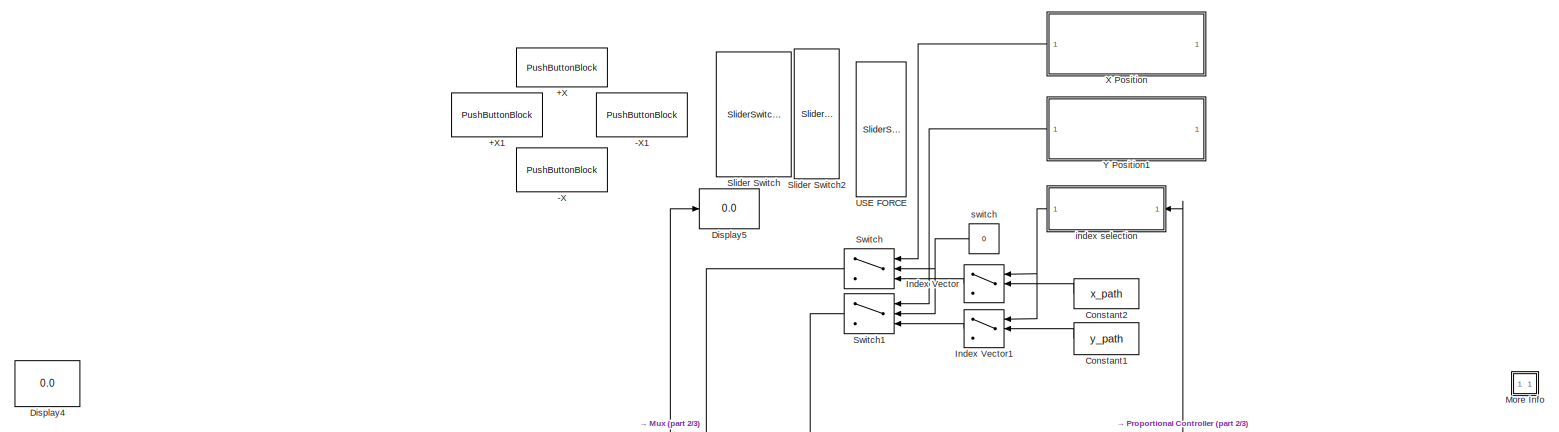
[diagram: root canvas - part 1/3, full width, top band]
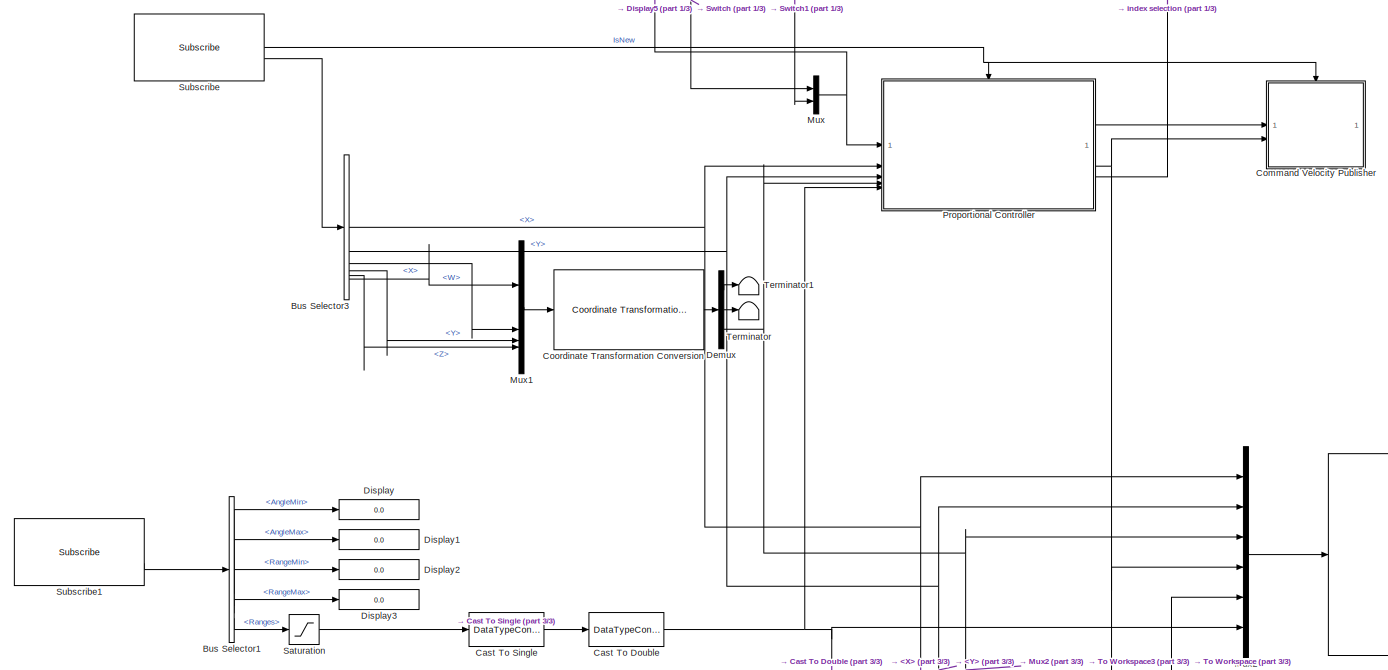
[diagram: root canvas - part 2/3, full width, middle band]
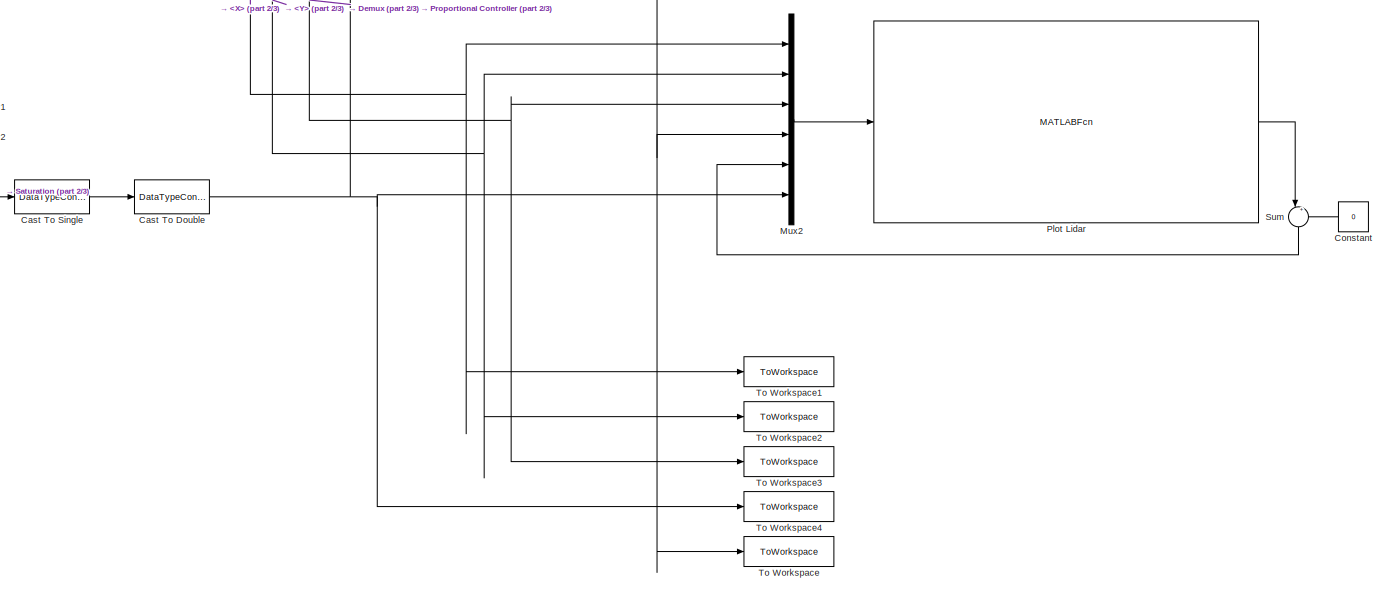
[diagram: root canvas - part 3/3, full width, bottom band]
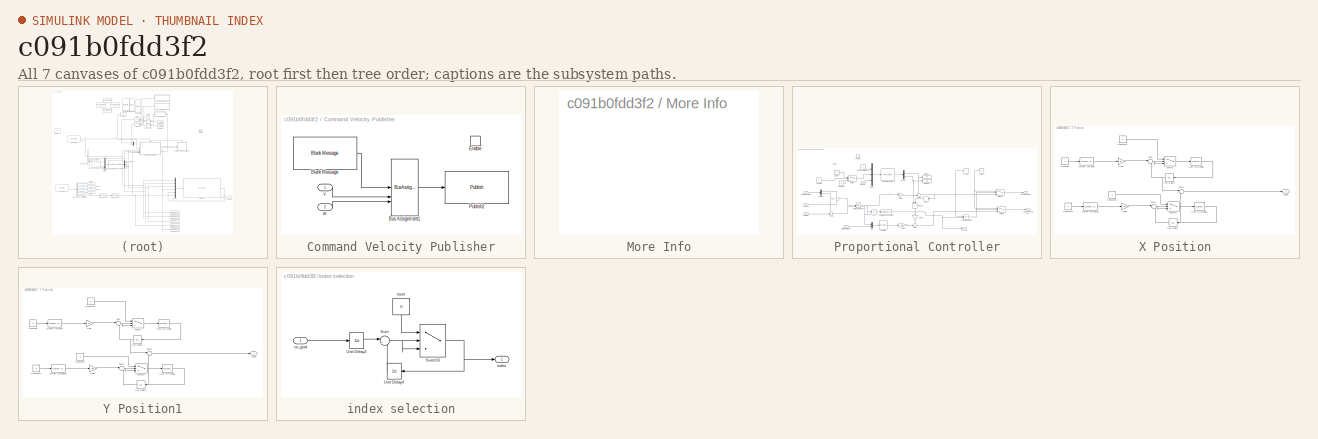
[diagram: thumbnail index - all 7 canvases of the model, root first then tree order]
MODEL slx_c091b0fdd3f2
KIND model
CONFIG AbsTol = auto
CONFIG EnableMultiTasking = on
CONFIG FixedStep = 0.02
CONFIG MaxStep = auto
CONFIG MinStep = auto
CONFIG RelTol = 1e-3
CONFIG SampleTimeConstraint = Unconstrained
CONFIG SolverName = FixedStepDiscrete
CONFIG StartTime = 0.0
CONFIG StopTime = Inf
WORKSPACE source: mxarray member
WORKSPACE SL_ROS_VariableLengthArrays_MaxSizes: object (value not decoded)
BLOCK [PushButtonBlock] +X
  ButtonText = +x
  CustomIcon = data:image/png;base64,iVBORw0KGgoAAAANSUhEUgAAAdEAAAJTCAYAAABXUyzVAAAAAXNSR0IArs4c6QAAAARnQU1BAACxjwv8YQUAAAAJcEhZcwAAEnQAABJ0Ad5mH3gAAP+lSURBVHhehP13ux21sr4L81ne6z3nt1cADE5zeuacs3POERMM2IAx2eScMyYvcgYHsMERR3AgrL3Pd6nz3NJ45pAH3uv8UZekUqmk7jGn7i51t/qyY8f3x9Gff5iUw0f3xc8nDgR6hPzxkz9O5ku965Ay7/Kx4wfi5OmDcezUT3Hs9E9x9JT8KP35zME4fEL9qnz0ZG6HnX2ckL39nJAeuyOyo63bH//lUM5LjlOW3clfDiuVjex/lo+TssHvSezk+9SZQ5...<+721802ch>
  OffValue = 0.000000
BLOCK [PushButtonBlock] +X1
  ButtonText = +y
  OffValue = 0.000000
BLOCK [PushButtonBlock] -X
  ButtonText = -x
  OffValue = 0.000000
BLOCK [PushButtonBlock] -X1
  ButtonText = -y
  OffValue = 0.000000
BLOCK [BusSelector] Bus Selector1
  OutputSignals = AngleMin,AngleMax,RangeMin,RangeMax,Ranges
BLOCK [BusSelector] Bus Selector3
  OutputSignals = Pose.Pose.Position.X,Pose.Pose.Position.Y,Pose.Pose.Orientation.X,Pose.Pose.Orientation.Y,Pose.Pose.Orientation.Z,Pose.Pose.Orientation.W
BLOCK [DataTypeConversion] Cast To Double
  OutDataTypeStr = double
  RndMeth = Floor
  SaturateOnIntegerOverflow = off
BLOCK [DataTypeConversion] Cast To Single
  OutDataTypeStr = single
  RndMeth = Floor
  SaturateOnIntegerOverflow = off
BLOCK [SubSystem] Command Velocity Publisher
BLOCK [Reference] Command Velocity Publisher/Blank Message  REF=robotlib/Blank Message
  SourceBlock = robotlib/Blank Message
  SourceType = ROS Blank Message
BLOCK [BusAssignment] Command Velocity Publisher/Bus Assignment1
  AssignedSignals = Linear.X,Angular.Z
  DialogController = Simulink.DDGSource_BusAssignment
BLOCK [EnablePort] Command Velocity Publisher/Enable
BLOCK [Reference] Command Velocity Publisher/Publish2  REF=robotlib/Publish
  AttributesFormatString = %<messageType>
  SourceBlock = robotlib/Publish
  SourceType = ROS Publish
BLOCK [Inport] Command Velocity Publisher/v
BLOCK [Inport] Command Velocity Publisher/w
  Port = 2
BLOCK [Constant] Constant
  NameLocation = top
  Value = 0
BLOCK [Constant] Constant1
  NameLocation = top
  Value = y_path
BLOCK [Constant] Constant2
  NameLocation = top
  Value = x_path
BLOCK [Reference] Coordinate Transformation Conversion  REF=robotcorelib/Coordinate Transformation Conversion
  LibrarySourceBlock = roslib/Utilities/Coordinate Transformation Conversion
  SourceBlock = robotcorelib/Coordinate Transformation Conversion
  SourceType = robotics.slcore.internal.block.CoordinateTransformationConversion
BLOCK [Demux] Demux
  Outputs = 3
BLOCK [Display] Display
  Decimation = 1
BLOCK [Display] Display1
  Decimation = 1
BLOCK [Display] Display2
  Decimation = 1
BLOCK [Display] Display3
  Decimation = 1
BLOCK [Display] Display4
  Decimation = 1
  NameLocation = top
BLOCK [Display] Display5
  Decimation = 1
BLOCK [MultiPortSwitch] Index Vector
  DataPortOrder = Zero-based contiguous
  InputSameDT = off
  Inputs = 1
  NameLocation = top
  SaturateOnIntegerOverflow = off
  zeroidx = on
BLOCK [MultiPortSwitch] Index Vector1
  DataPortOrder = Zero-based contiguous
  InputSameDT = off
  Inputs = 1
  NameLocation = top
  SaturateOnIntegerOverflow = off
  zeroidx = on
BLOCK [SubSystem] More Info
  OpenFcn = showdemo(bdroot(gcb))
BLOCK [Mux] Mux
  DisplayOption = bar
  Inputs = 2
BLOCK [Mux] Mux1
  DisplayOption = bar
BLOCK [Mux] Mux2
  DisplayOption = bar
  Inputs = 6
BLOCK [MATLABFcn] Plot Lidar
  MATLABFcn = occupancy_map(u(1), u(2), u(3), u(4), u(5), u(6:end))
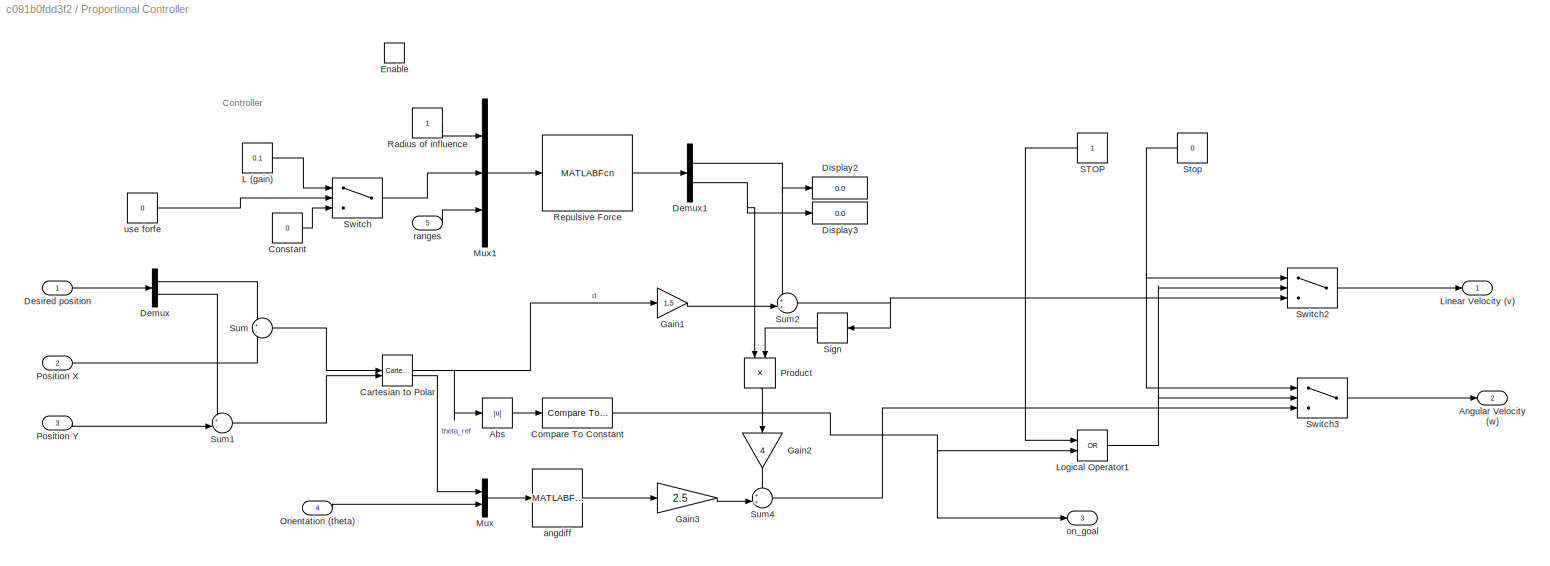
BLOCK [SubSystem] Proportional Controller
BLOCK [Abs] Proportional Controller/Abs
  SaturateOnIntegerOverflow = off
BLOCK [Outport] Proportional Controller/Angular Velocity (w)
  Port = 2
  VectorParamsAs1DForOutWhenUnconnected = off
BLOCK [Reference] Proportional Controller/Cartesian to Polar  REF=simulink_extras/Transformations/Cartesian to
Polar
  SourceBlock = simulink_extras/Transformations/Cartesian to\nPolar
  SourceType = Cart2Polar
BLOCK [Reference] Proportional Controller/Compare To Constant  REF=simulink/Logic and Bit
Operations/Compare
To Constant
  SourceBlock = simulink/Logic and Bit\nOperations/Compare\nTo Constant
  SourceType = Compare To Constant
BLOCK [Constant] Proportional Controller/Constant
  Value = 0
BLOCK [Demux] Proportional Controller/Demux
  Outputs = 2
BLOCK [Demux] Proportional Controller/Demux1
  Outputs = 2
BLOCK [Inport] Proportional Controller/Desired position
BLOCK [Display] Proportional Controller/Display2
  Decimation = 1
BLOCK [Display] Proportional Controller/Display3
  Decimation = 1
BLOCK [EnablePort] Proportional Controller/Enable
BLOCK [Gain] Proportional Controller/Gain1
  Gain = 1.5
BLOCK [Gain] Proportional Controller/Gain2
  Gain = 4
  NameLocation = left
BLOCK [Gain] Proportional Controller/Gain3
  Gain = 2.5
BLOCK [Constant] Proportional Controller/L (gain)
  Value = 0.1
BLOCK [Outport] Proportional Controller/Linear Velocity (v)
  VectorParamsAs1DForOutWhenUnconnected = off
BLOCK [Logic] Proportional Controller/Logical Operator1
  AllPortsSameDT = off
  Operator = OR
  OutDataTypeStr = boolean
BLOCK [Mux] Proportional Controller/Mux
  DisplayOption = bar
  Inputs = 2
BLOCK [Mux] Proportional Controller/Mux1
  DisplayOption = bar
  Inputs = 3
BLOCK [Inport] Proportional Controller/Orientation (theta)
  Port = 4
BLOCK [Inport] Proportional Controller/Position X
  Port = 2
BLOCK [Inport] Proportional Controller/Position Y
  Port = 3
BLOCK [Product] Proportional Controller/Product
  NameLocation = left
BLOCK [Constant] Proportional Controller/Radius of influence
BLOCK [MATLABFcn] Proportional Controller/Repulsive Force
  MATLABFcn = repulsive_force(u(1), u(2), u(3:end))
BLOCK [Constant] Proportional Controller/STOP 
  NameLocation = top
BLOCK [Signum] Proportional Controller/Sign
  NameLocation = top
BLOCK [Constant] Proportional Controller/Stop
  NameLocation = top
  Value = 0
BLOCK [Sum] Proportional Controller/Sum
  Inputs = +-
BLOCK [Sum] Proportional Controller/Sum1
  Inputs = +-|
BLOCK [Sum] Proportional Controller/Sum2
  Inputs = ++|
BLOCK [Sum] Proportional Controller/Sum4
  Inputs = ++|
BLOCK [Switch] Proportional Controller/Switch
  Criteria = u2 ~= 0
  InputSameDT = off
  SaturateOnIntegerOverflow = off
BLOCK [Switch] Proportional Controller/Switch2
  Criteria = u2 ~= 0
  InputSameDT = off
  SaturateOnIntegerOverflow = off
BLOCK [Switch] Proportional Controller/Switch3
  Criteria = u2 ~= 0
  InputSameDT = off
  SaturateOnIntegerOverflow = off
BLOCK [MATLABFcn] Proportional Controller/angdiff
  MATLABFcn = angdiff(u(2), u(1))
BLOCK [Outport] Proportional Controller/on_goal
  Port = 3
BLOCK [Inport] Proportional Controller/ranges
  Port = 5
BLOCK [Constant] Proportional Controller/use forfe
  Value = 0
BLOCK [Saturate] Saturation
  LinearizeAsGain = off
  LowerLimit = 0.12
  UpperLimit = 3.5
BLOCK [SliderSwitchBlock] Slider Switch
  NameLocation = left
BLOCK [SliderSwitchBlock] Slider Switch2
  NameLocation = left
BLOCK [Reference] Subscribe  REF=robotlib/Subscribe
  SourceBlock = robotlib/Subscribe
  SourceType = ROS Subscribe
BLOCK [Reference] Subscribe1  REF=robotlib/Subscribe
  SourceBlock = robotlib/Subscribe
  SourceType = ROS Subscribe
BLOCK [Sum] Sum
  Inputs = |++
  NameLocation = left
BLOCK [Switch] Switch
  Criteria = u2 > Threshold
  InputSameDT = off
  NameLocation = top
  SaturateOnIntegerOverflow = off
BLOCK [Switch] Switch1
  Criteria = u2 > Threshold
  InputSameDT = off
  NameLocation = top
  SaturateOnIntegerOverflow = off
BLOCK [Terminator] Terminator
BLOCK [Terminator] Terminator1
BLOCK [ToWorkspace] To Workspace
  FixptAsFi = on
  MaxDataPoints = inf
  SampleTime = -1
  SaveFormat = Timeseries
  VariableName = ang_vel_exp
BLOCK [ToWorkspace] To Workspace1
  FixptAsFi = on
  MaxDataPoints = inf
  SampleTime = -1
  SaveFormat = Timeseries
  VariableName = x_exp
BLOCK [ToWorkspace] To Workspace2
  FixptAsFi = on
  MaxDataPoints = inf
  SampleTime = -1
  SaveFormat = Timeseries
  VariableName = y_exp
BLOCK [ToWorkspace] To Workspace3
  FixptAsFi = on
  MaxDataPoints = inf
  SampleTime = -1
  SaveFormat = Timeseries
  VariableName = theta_exp
BLOCK [ToWorkspace] To Workspace4
  FixptAsFi = on
  MaxDataPoints = inf
  SampleTime = -1
  SaveFormat = Timeseries
  VariableName = ranges_exp
BLOCK [SliderSwitchBlock] USE FORCE
  LabelPosition = Bottom
  NameLocation = left
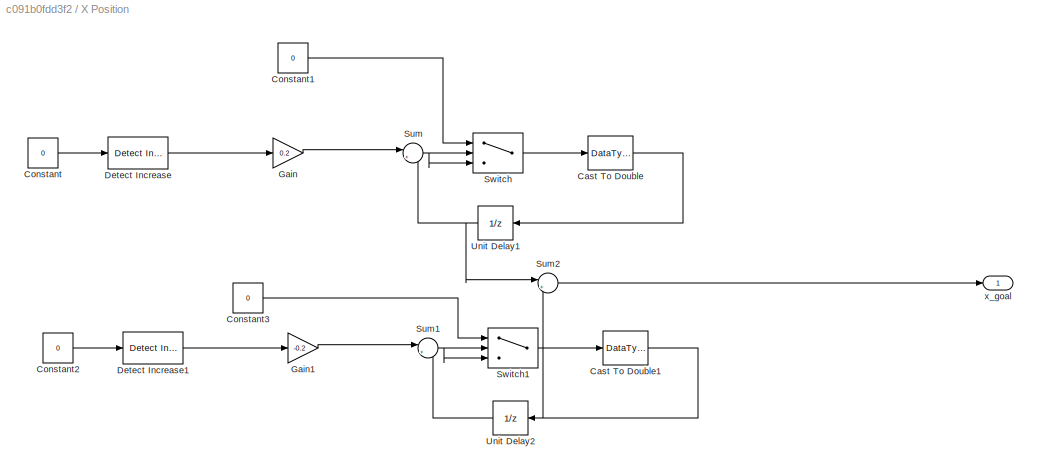
BLOCK [SubSystem] X Position
  NameLocation = top
BLOCK [DataTypeConversion] X Position/Cast To Double
  OutDataTypeStr = double
  RndMeth = Floor
  SaturateOnIntegerOverflow = off
BLOCK [DataTypeConversion] X Position/Cast To Double1
  OutDataTypeStr = double
  RndMeth = Floor
  SaturateOnIntegerOverflow = off
BLOCK [Constant] X Position/Constant
  Value = 0
BLOCK [Constant] X Position/Constant1
  Value = 0
BLOCK [Constant] X Position/Constant2
  Value = 0
BLOCK [Constant] X Position/Constant3
  Value = 0
BLOCK [Reference] X Position/Detect Increase  REF=simulink/Logic and Bit
Operations/Detect
Increase
  SourceBlock = simulink/Logic and Bit\nOperations/Detect\nIncrease
  SourceType = Detect Increase
BLOCK [Reference] X Position/Detect Increase1  REF=simulink/Logic and Bit
Operations/Detect
Increase
  SourceBlock = simulink/Logic and Bit\nOperations/Detect\nIncrease
  SourceType = Detect Increase
BLOCK [Gain] X Position/Gain
  Gain = 0.2
BLOCK [Gain] X Position/Gain1
  Gain = -0.2
BLOCK [Sum] X Position/Sum
  Inputs = |++
BLOCK [Sum] X Position/Sum1
  Inputs = |++
BLOCK [Sum] X Position/Sum2
  Inputs = |++
BLOCK [Switch] X Position/Switch
  InputSameDT = off
  SaturateOnIntegerOverflow = off
  Threshold = 1000
BLOCK [Switch] X Position/Switch1
  InputSameDT = off
  SaturateOnIntegerOverflow = off
  Threshold = 1000
BLOCK [UnitDelay] X Position/Unit Delay1
  HasFrameUpgradeWarning = on
  NameLocation = top
  SampleTime = -1
BLOCK [UnitDelay] X Position/Unit Delay2
  HasFrameUpgradeWarning = on
  NameLocation = top
  SampleTime = -1
BLOCK [Outport] X Position/x_goal
BLOCK [SubSystem] Y Position1
  NameLocation = top
BLOCK [DataTypeConversion] Y Position1/Cast To Double
  OutDataTypeStr = double
  RndMeth = Floor
  SaturateOnIntegerOverflow = off
BLOCK [DataTypeConversion] Y Position1/Cast To Double1
  OutDataTypeStr = double
  RndMeth = Floor
  SaturateOnIntegerOverflow = off
BLOCK [Constant] Y Position1/Constant
  Value = 0
BLOCK [Constant] Y Position1/Constant1
  Value = 0
BLOCK [Constant] Y Position1/Constant2
  Value = 0
BLOCK [Constant] Y Position1/Constant3
  Value = 0
BLOCK [Reference] Y Position1/Detect Increase  REF=simulink/Logic and Bit
Operations/Detect
Increase
  SourceBlock = simulink/Logic and Bit\nOperations/Detect\nIncrease
  SourceType = Detect Increase
BLOCK [Reference] Y Position1/Detect Increase1  REF=simulink/Logic and Bit
Operations/Detect
Increase
  SourceBlock = simulink/Logic and Bit\nOperations/Detect\nIncrease
  SourceType = Detect Increase
BLOCK [Gain] Y Position1/Gain
  Gain = 0.2
BLOCK [Gain] Y Position1/Gain1
  Gain = -0.2
BLOCK [Sum] Y Position1/Sum
  Inputs = |++
BLOCK [Sum] Y Position1/Sum1
  Inputs = |++
BLOCK [Sum] Y Position1/Sum2
  Inputs = |++
BLOCK [Switch] Y Position1/Switch
  InputSameDT = off
  SaturateOnIntegerOverflow = off
  Threshold = 1000
BLOCK [Switch] Y Position1/Switch1
  InputSameDT = off
  SaturateOnIntegerOverflow = off
  Threshold = 1000
BLOCK [UnitDelay] Y Position1/Unit Delay1
  HasFrameUpgradeWarning = on
  NameLocation = top
  SampleTime = -1
BLOCK [UnitDelay] Y Position1/Unit Delay2
  HasFrameUpgradeWarning = on
  NameLocation = top
  SampleTime = -1
BLOCK [Outport] Y Position1/y_goal
BLOCK [SubSystem] index selection
  NameLocation = top
BLOCK [Sum] index selection/Sum
  Inputs = |++
BLOCK [Switch] index selection/Switch3
  InputSameDT = off
  SaturateOnIntegerOverflow = off
  Threshold = length(x_path)
BLOCK [UnitDelay] index selection/Unit Delay2
  HasFrameUpgradeWarning = on
  SampleTime = -1
BLOCK [UnitDelay] index selection/Unit Delay4
  HasFrameUpgradeWarning = on
  SampleTime = -1
BLOCK [Outport] index selection/index
BLOCK [Inport] index selection/on_goal
BLOCK [Constant] index selection/reset
  NameLocation = left
  Value = 0
  VectorParams1D = off
BLOCK [Constant] switch
  NameLocation = top
  Value = 0
ANNOTATION Proportional Controller: Controller
LINE Bus Selector1:1 -> Display:1
LINE Bus Selector1:2 -> Display1:1
LINE Bus Selector1:3 -> Display2:1
LINE Bus Selector1:4 -> Display3:1
LINE Bus Selector1:5 -> Saturation:1
NET Bus Selector3:1 -> Mux2:1, Proportional Controller:2, To Workspace1:1
NET Bus Selector3:2 -> Mux2:2, Proportional Controller:3, To Workspace2:1
LINE Bus Selector3:3 -> Mux1:2
LINE Bus Selector3:4 -> Mux1:3
LINE Bus Selector3:5 -> Mux1:4
LINE Bus Selector3:6 -> Mux1:1
NET Cast To Double:1 -> Mux2:6, Proportional Controller:5, To Workspace4:1
LINE Cast To Single:1 -> Cast To Double:1
LINE Command Velocity Publisher/Blank Message:1 -> Command Velocity Publisher/Bus Assignment1:1
LINE Command Velocity Publisher/Bus Assignment1:1 -> Command Velocity Publisher/Publish2:1
LINE Command Velocity Publisher/v:1 -> Command Velocity Publisher/Bus Assignment1:2
LINE Command Velocity Publisher/w:1 -> Command Velocity Publisher/Bus Assignment1:3
LINE Constant1:1 -> Index Vector1:2
LINE Constant2:1 -> Index Vector:2
LINE Constant:1 -> Sum:2
LINE Coordinate Transformation Conversion:1 -> Demux:1
LINE Demux:1 -> Terminator1:1
LINE Demux:2 -> Terminator:1
NET Demux:3 -> Mux2:3, Proportional Controller:4, To Workspace3:1
LINE Index Vector1:1 -> Switch1:3
LINE Index Vector:1 -> Switch:3
LINE Mux1:1 -> Coordinate Transformation Conversion:1
LINE Mux2:1 -> Plot Lidar:1
NET Mux:1 -> Display5:1, Proportional Controller:1
LINE Plot Lidar:1 -> Sum:1
LINE Proportional Controller/Abs:1 -> Proportional Controller/Compare To Constant:1
NET Proportional Controller/Cartesian to Polar:1 -> Proportional Controller/Abs:1, Proportional Controller/Gain1:1
LINE Proportional Controller/Cartesian to Polar:2 -> Proportional Controller/Mux:1
NET Proportional Controller/Compare To Constant:1 -> Proportional Controller/Logical Operator1:2, Proportional Controller/on_goal:1
LINE Proportional Controller/Constant:1 -> Proportional Controller/Switch:3
NET Proportional Controller/Demux1:1 -> Proportional Controller/Display2:1, Proportional Controller/Sum2:1
NET Proportional Controller/Demux1:2 -> Proportional Controller/Display3:1, Proportional Controller/Product:1
LINE Proportional Controller/Demux:1 -> Proportional Controller/Sum:1
LINE Proportional Controller/Demux:2 -> Proportional Controller/Sum1:1
LINE Proportional Controller/Desired position:1 -> Proportional Controller/Demux:1
LINE Proportional Controller/Gain1:1 -> Proportional Controller/Sum2:2
LINE Proportional Controller/Gain2:1 -> Proportional Controller/Sum4:1
LINE Proportional Controller/Gain3:1 -> Proportional Controller/Sum4:2
LINE Proportional Controller/L (gain):1 -> Proportional Controller/Switch:1
NET Proportional Controller/Logical Operator1:1 -> Proportional Controller/Switch2:2, Proportional Controller/Switch3:2
LINE Proportional Controller/Mux1:1 -> Proportional Controller/Repulsive Force:1
LINE Proportional Controller/Mux:1 -> Proportional Controller/angdiff:1
LINE Proportional Controller/Orientation (theta):1 -> Proportional Controller/Mux:2
LINE Proportional Controller/Position X:1 -> Proportional Controller/Sum:2
LINE Proportional Controller/Position Y:1 -> Proportional Controller/Sum1:2
LINE Proportional Controller/Product:1 -> Proportional Controller/Gain2:1
LINE Proportional Controller/Radius of influence:1 -> Proportional Controller/Mux1:1
LINE Proportional Controller/Repulsive Force:1 -> Proportional Controller/Demux1:1
LINE Proportional Controller/STOP :1 -> Proportional Controller/Logical Operator1:1
LINE Proportional Controller/Sign:1 -> Proportional Controller/Product:2
NET Proportional Controller/Stop:1 -> Proportional Controller/Switch2:1, Proportional Controller/Switch3:1
LINE Proportional Controller/Sum1:1 -> Proportional Controller/Cartesian to Polar:2
NET Proportional Controller/Sum2:1 -> Proportional Controller/Sign:1, Proportional Controller/Switch2:3
LINE Proportional Controller/Sum4:1 -> Proportional Controller/Switch3:3
LINE Proportional Controller/Sum:1 -> Proportional Controller/Cartesian to Polar:1
LINE Proportional Controller/Switch2:1 -> Proportional Controller/Linear Velocity (v):1
LINE Proportional Controller/Switch3:1 -> Proportional Controller/Angular Velocity (w):1
LINE Proportional Controller/Switch:1 -> Proportional Controller/Mux1:2
LINE Proportional Controller/angdiff:1 -> Proportional Controller/Gain3:1
LINE Proportional Controller/ranges:1 -> Proportional Controller/Mux1:3
LINE Proportional Controller/use forfe:1 -> Proportional Controller/Switch:2
LINE Proportional Controller:1 -> Command Velocity Publisher:1
NET Proportional Controller:2 -> Command Velocity Publisher:2, Mux2:4, To Workspace:1
LINE Proportional Controller:3 -> index selection:1
LINE Saturation:1 -> Cast To Single:1
LINE Subscribe1:2 -> Bus Selector1:1
NET Subscribe:1 -> Command Velocity Publisher:enable, Proportional Controller:enable
LINE Subscribe:2 -> Bus Selector3:1
LINE Sum:1 -> Mux2:5
LINE Switch1:1 -> Mux:2
LINE Switch:1 -> Mux:1
NET X Position/Cast To Double1:1 -> X Position/Sum2:2, X Position/Unit Delay2:1
LINE X Position/Cast To Double:1 -> X Position/Unit Delay1:1
LINE X Position/Constant1:1 -> X Position/Switch:1
LINE X Position/Constant2:1 -> X Position/Detect Increase1:1
LINE X Position/Constant3:1 -> X Position/Switch1:1
LINE X Position/Constant:1 -> X Position/Detect Increase:1
LINE X Position/Detect Increase1:1 -> X Position/Gain1:1
LINE X Position/Detect Increase:1 -> X Position/Gain:1
LINE X Position/Gain1:1 -> X Position/Sum1:1
LINE X Position/Gain:1 -> X Position/Sum:1
NET X Position/Sum1:1 -> X Position/Switch1:2, X Position/Switch1:3
LINE X Position/Sum2:1 -> X Position/x_goal:1
NET X Position/Sum:1 -> X Position/Switch:2, X Position/Switch:3
LINE X Position/Switch1:1 -> X Position/Cast To Double1:1
LINE X Position/Switch:1 -> X Position/Cast To Double:1
NET X Position/Unit Delay1:1 -> X Position/Sum2:1, X Position/Sum:2
LINE X Position/Unit Delay2:1 -> X Position/Sum1:2
LINE X Position:1 -> Switch:1
NET Y Position1/Cast To Double1:1 -> Y Position1/Sum2:2, Y Position1/Unit Delay2:1
LINE Y Position1/Cast To Double:1 -> Y Position1/Unit Delay1:1
LINE Y Position1/Constant1:1 -> Y Position1/Switch:1
LINE Y Position1/Constant2:1 -> Y Position1/Detect Increase1:1
LINE Y Position1/Constant3:1 -> Y Position1/Switch1:1
LINE Y Position1/Constant:1 -> Y Position1/Detect Increase:1
LINE Y Position1/Detect Increase1:1 -> Y Position1/Gain1:1
LINE Y Position1/Detect Increase:1 -> Y Position1/Gain:1
LINE Y Position1/Gain1:1 -> Y Position1/Sum1:1
LINE Y Position1/Gain:1 -> Y Position1/Sum:1
NET Y Position1/Sum1:1 -> Y Position1/Switch1:2, Y Position1/Switch1:3
LINE Y Position1/Sum2:1 -> Y Position1/y_goal:1
NET Y Position1/Sum:1 -> Y Position1/Switch:2, Y Position1/Switch:3
LINE Y Position1/Switch1:1 -> Y Position1/Cast To Double1:1
LINE Y Position1/Switch:1 -> Y Position1/Cast To Double:1
NET Y Position1/Unit Delay1:1 -> Y Position1/Sum2:1, Y Position1/Sum:2
LINE Y Position1/Unit Delay2:1 -> Y Position1/Sum1:2
LINE Y Position1:1 -> Switch1:1
NET index selection/Sum:1 -> index selection/Switch3:2, index selection/Switch3:3
NET index selection/Switch3:1 -> index selection/Unit Delay4:1, index selection/index:1
LINE index selection/Unit Delay2:1 -> index selection/Sum:1
LINE index selection/Unit Delay4:1 -> index selection/Sum:2
LINE index selection/on_goal:1 -> index selection/Unit Delay2:1
LINE index selection/reset:1 -> index selection/Switch3:1
NET index selection:1 -> Index Vector1:1, Index Vector:1
NET switch:1 -> Switch1:2, Switch:2
note: NET lines group one-source signal fan-out (src -> all destinations, sorted); 1:1 wires keep LINE
